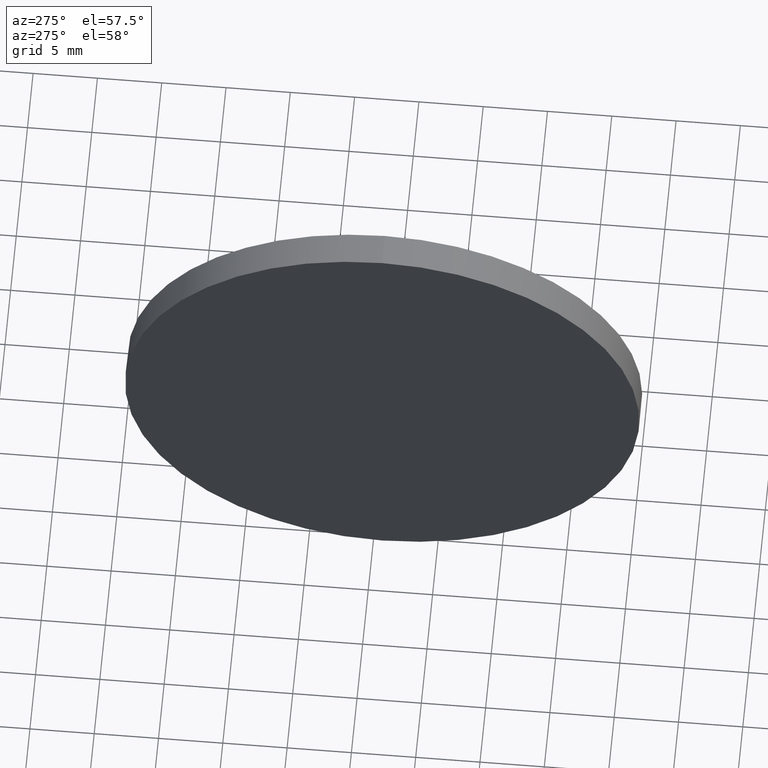
[diagram: clean part render]
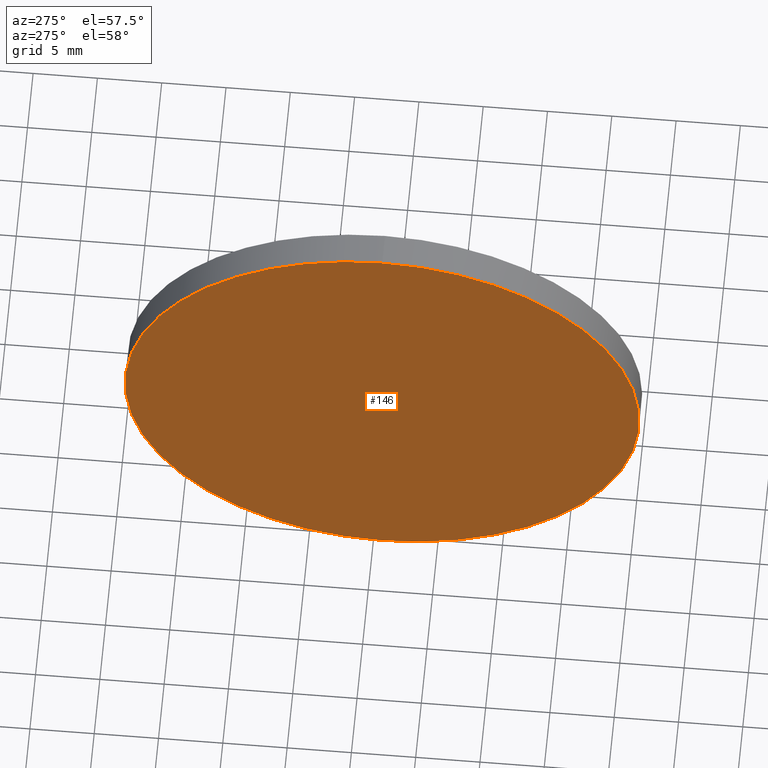
[diagram: same view with one face highlighted and labeled with its STEP entity id]
A machine part, auxiliary view. The second image highlights one B-rep face of the part: STEP entity #146.
In plain terms, the highlighted planar face has unit normal (1, 0, 0).
Its self-contained STEP definition (entity closure, byte-faithful):
#21 = AXIS2_PLACEMENT_3D ( 'NONE', #74, #164, #98 ) ;
#28 = CARTESIAN_POINT ( 'NONE',  ( 564.0754252328479200, 109.2775278942657500, 0.0000000000000000000 ) ) ;
#32 = EDGE_CURVE ( 'NONE', #93, #62, #67, .T. ) ;
#41 = ORIENTED_EDGE ( 'NONE', *, *, #32, .T. ) ;
#45 = CARTESIAN_POINT ( 'NONE',  ( 564.0754252328479200, 109.2775278942657500, 20.00000000000000400 ) ) ;
#52 = EDGE_CURVE ( 'NONE', #62, #93, #123, .T. ) ;
#55 = DIRECTION ( 'NONE',  ( -1.000000000000000000, -0.0000000000000000000, -0.0000000000000000000 ) ) ;
#59 = DIRECTION ( 'NONE',  ( 0.0000000000000000000, 0.0000000000000000000, 1.000000000000000000 ) ) ;
#62 = VERTEX_POINT ( 'NONE', #144 ) ;
#67 = CIRCLE ( 'NONE', #143, 20.00000000000000400 ) ;
#69 = DIRECTION ( 'NONE',  ( -1.000000000000000000, -0.0000000000000000000, -0.0000000000000000000 ) ) ;
#74 = CARTESIAN_POINT ( 'NONE',  ( 564.0754252328479200, 109.2775278942657500, 0.0000000000000000000 ) ) ;
#91 = FACE_OUTER_BOUND ( 'NONE', #162, .T. ) ;
#93 = VERTEX_POINT ( 'NONE', #45 ) ;
#96 = CARTESIAN_POINT ( 'NONE',  ( 564.0754252328479200, 109.2775278942657500, 0.0000000000000000000 ) ) ;
#98 = DIRECTION ( 'NONE',  ( 0.0000000000000000000, 0.0000000000000000000, -1.000000000000000000 ) ) ;
#113 = DIRECTION ( 'NONE',  ( 0.0000000000000000000, 0.0000000000000000000, 1.000000000000000000 ) ) ;
#123 = CIRCLE ( 'NONE', #171, 20.00000000000000400 ) ;
#143 = AXIS2_PLACEMENT_3D ( 'NONE', #28, #69, #59 ) ;
#144 = CARTESIAN_POINT ( 'NONE',  ( 564.0754252328479200, 109.2775278942657500, -20.00000000000000400 ) ) ;
#146 = ADVANCED_FACE ( 'NONE', ( #91 ), #163, .F. ) ;
#158 = ORIENTED_EDGE ( 'NONE', *, *, #52, .T. ) ;
#162 = EDGE_LOOP ( 'NONE', ( #41, #158 ) ) ;
#163 = PLANE ( 'NONE',  #21 ) ;
#164 = DIRECTION ( 'NONE',  ( 1.000000000000000000, 0.0000000000000000000, 0.0000000000000000000 ) ) ;
#171 = AXIS2_PLACEMENT_3D ( 'NONE', #96, #55, #113 ) ;